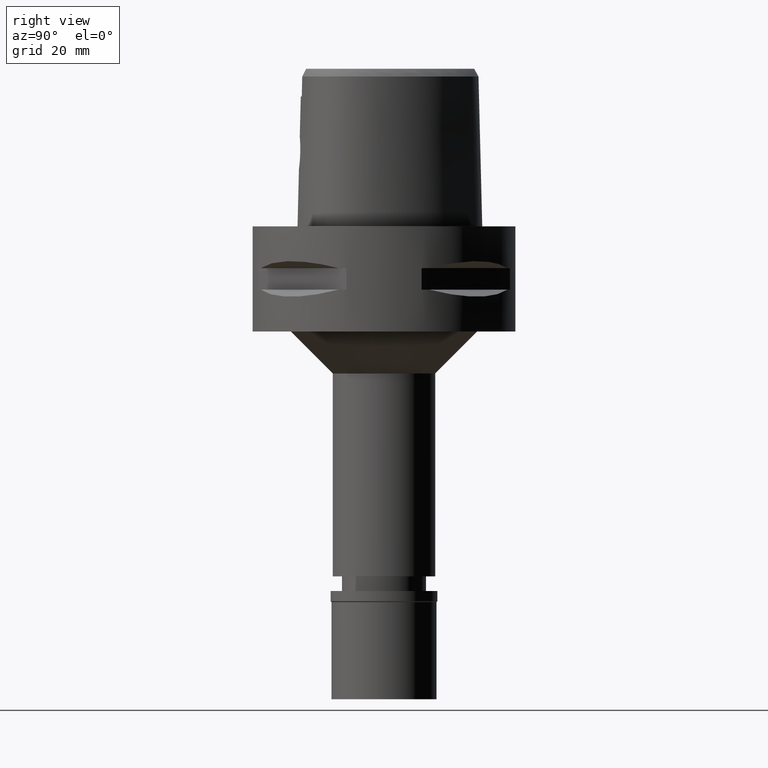
[diagram: clean part render]
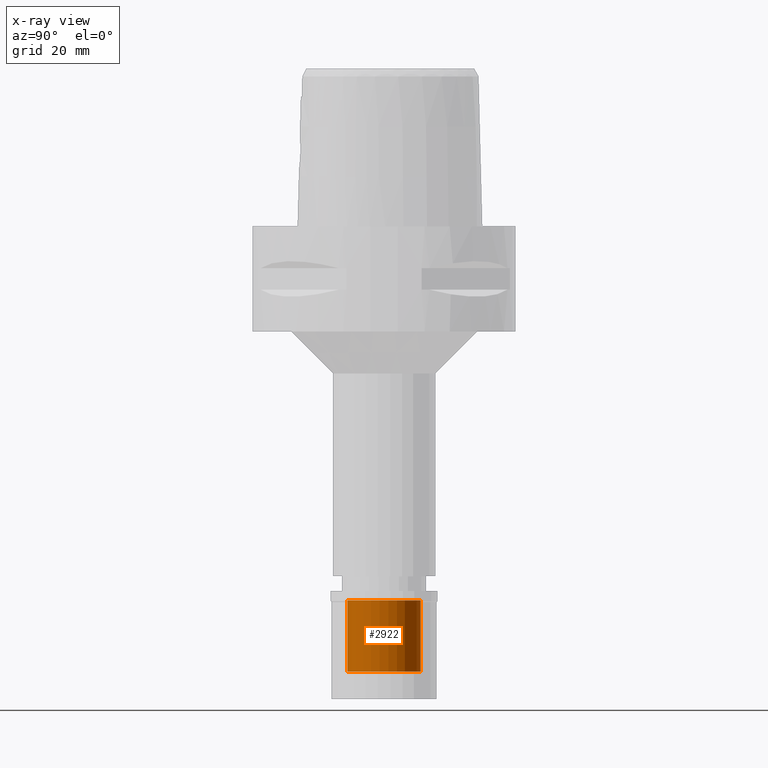
[diagram: x-ray — body ghosted, one internal face saturated and labeled with its STEP entity id]
A machine part, right view, then the same camera in x-ray: the body is ghosted and one INTERNAL B-rep face — a face not visible from any outside direction — is saturated and labeled: STEP entity #2922.
In plain terms, the highlighted cylindrical surface (partial cylindrical patch) has radius 7 mm, axis along (0, 0, -1).
Its self-contained STEP definition (entity closure, byte-faithful):
#49 = VERTEX_POINT ( 'NONE', #4539 ) ;
#99 = EDGE_CURVE ( 'NONE', #922, #1220, #3536, .T. ) ;
#343 = CARTESIAN_POINT ( 'NONE',  ( 0.0000000000000000000, 0.0000000000000000000, -1.800000000000000044 ) ) ;
#574 = CARTESIAN_POINT ( 'NONE',  ( 0.0000000000000000000, 7.000000000000000000, -15.29999999999999893 ) ) ;
#576 = VECTOR ( 'NONE', #3445, 1000.000000000000000 ) ;
#922 = VERTEX_POINT ( 'NONE', #3650 ) ;
#1038 = DIRECTION ( 'NONE',  ( 0.0000000000000000000, -1.000000000000000000, 0.0000000000000000000 ) ) ;
#1048 = VERTEX_POINT ( 'NONE', #574 ) ;
#1125 = DIRECTION ( 'NONE',  ( 0.0000000000000000000, 0.0000000000000000000, 1.000000000000000000 ) ) ;
#1143 = CARTESIAN_POINT ( 'NONE',  ( 0.0000000000000000000, -7.000000000000000000, -15.29999999999999893 ) ) ;
#1220 = VERTEX_POINT ( 'NONE', #2639 ) ;
#1308 = FACE_OUTER_BOUND ( 'NONE', #1957, .T. ) ;
#1364 = EDGE_CURVE ( 'NONE', #1048, #49, #2831, .T. ) ;
#1457 = DIRECTION ( 'NONE',  ( 0.0000000000000000000, 0.0000000000000000000, -1.000000000000000000 ) ) ;
#1645 = CARTESIAN_POINT ( 'NONE',  ( 0.0000000000000000000, 0.0000000000000000000, 0.0000000000000000000 ) ) ;
#1948 = LINE ( 'NONE', #1143, #576 ) ;
#1957 = EDGE_LOOP ( 'NONE', ( #2579, #2777, #3569, #3369 ) ) ;
#2222 = DIRECTION ( 'NONE',  ( 0.0000000000000000000, 0.0000000000000000000, 1.000000000000000000 ) ) ;
#2337 = CARTESIAN_POINT ( 'NONE',  ( 0.0000000000000000000, 7.000000000000000000, -15.29999999999999893 ) ) ;
#2452 = EDGE_CURVE ( 'NONE', #49, #922, #1948, .T. ) ;
#2579 = ORIENTED_EDGE ( 'NONE', *, *, #1364, .T. ) ;
#2639 = CARTESIAN_POINT ( 'NONE',  ( 0.0000000000000000000, 7.000000000000000000, -1.800000000000000044 ) ) ;
#2777 = ORIENTED_EDGE ( 'NONE', *, *, #2452, .T. ) ;
#2831 = CIRCLE ( 'NONE', #3305, 7.000000000000000000 ) ;
#2895 = AXIS2_PLACEMENT_3D ( 'NONE', #343, #2222, #1038 ) ;
#2922 = ADVANCED_FACE ( 'NONE', ( #1308 ), #4354, .F. ) ;
#2974 = DIRECTION ( 'NONE',  ( 0.0000000000000000000, 1.000000000000000000, 0.0000000000000000000 ) ) ;
#3048 = LINE ( 'NONE', #2337, #3476 ) ;
#3305 = AXIS2_PLACEMENT_3D ( 'NONE', #3348, #1457, #2974 ) ;
#3348 = CARTESIAN_POINT ( 'NONE',  ( 0.0000000000000000000, 0.0000000000000000000, -15.29999999999999893 ) ) ;
#3369 = ORIENTED_EDGE ( 'NONE', *, *, #3565, .F. ) ;
#3445 = DIRECTION ( 'NONE',  ( 0.0000000000000000000, 0.0000000000000000000, 1.000000000000000000 ) ) ;
#3476 = VECTOR ( 'NONE', #1125, 1000.000000000000000 ) ;
#3536 = CIRCLE ( 'NONE', #2895, 7.000000000000000000 ) ;
#3557 = DIRECTION ( 'NONE',  ( 0.0000000000000000000, -1.000000000000000000, 0.0000000000000000000 ) ) ;
#3565 = EDGE_CURVE ( 'NONE', #1048, #1220, #3048, .T. ) ;
#3569 = ORIENTED_EDGE ( 'NONE', *, *, #99, .T. ) ;
#3650 = CARTESIAN_POINT ( 'NONE',  ( 0.0000000000000000000, -7.000000000000000000, -1.800000000000000044 ) ) ;
#3982 = DIRECTION ( 'NONE',  ( 0.0000000000000000000, 0.0000000000000000000, -1.000000000000000000 ) ) ;
#4354 = CYLINDRICAL_SURFACE ( 'NONE', #4818, 7.000000000000000000 ) ;
#4539 = CARTESIAN_POINT ( 'NONE',  ( 0.0000000000000000000, -7.000000000000000000, -15.29999999999999893 ) ) ;
#4818 = AXIS2_PLACEMENT_3D ( 'NONE', #1645, #3982, #3557 ) ;